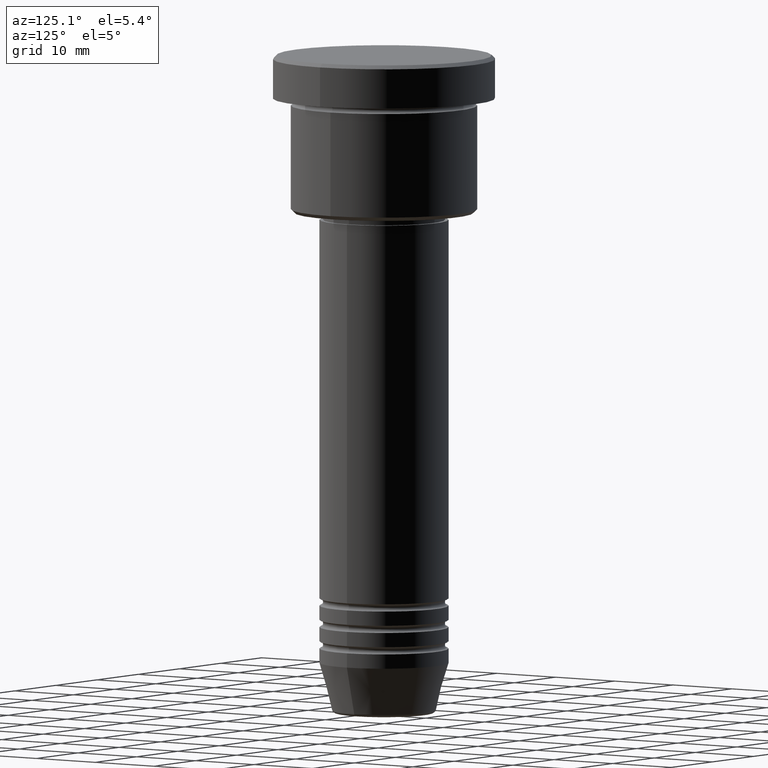
[diagram: clean part render]
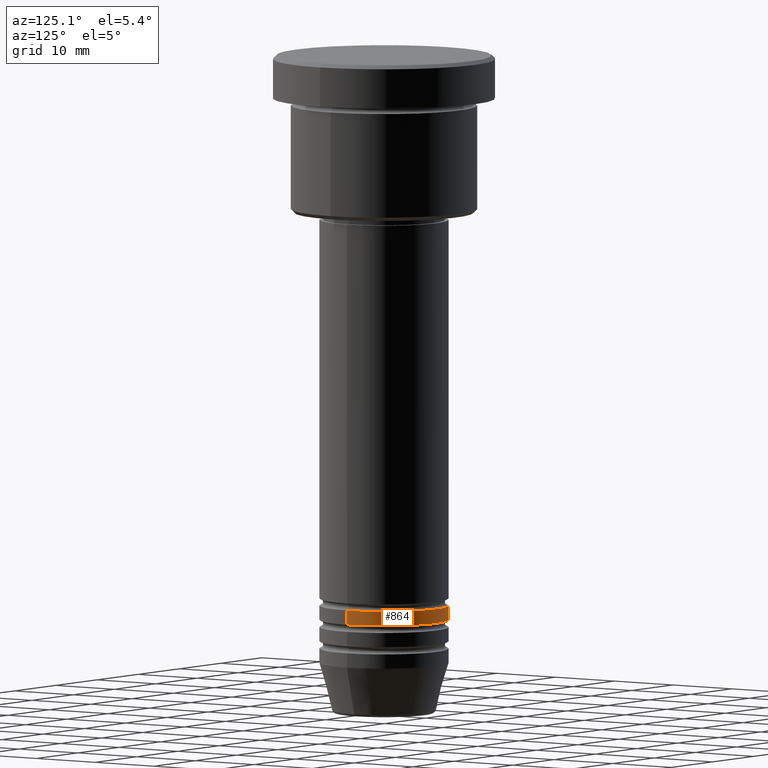
[diagram: same view with one face highlighted and labeled with its STEP entity id]
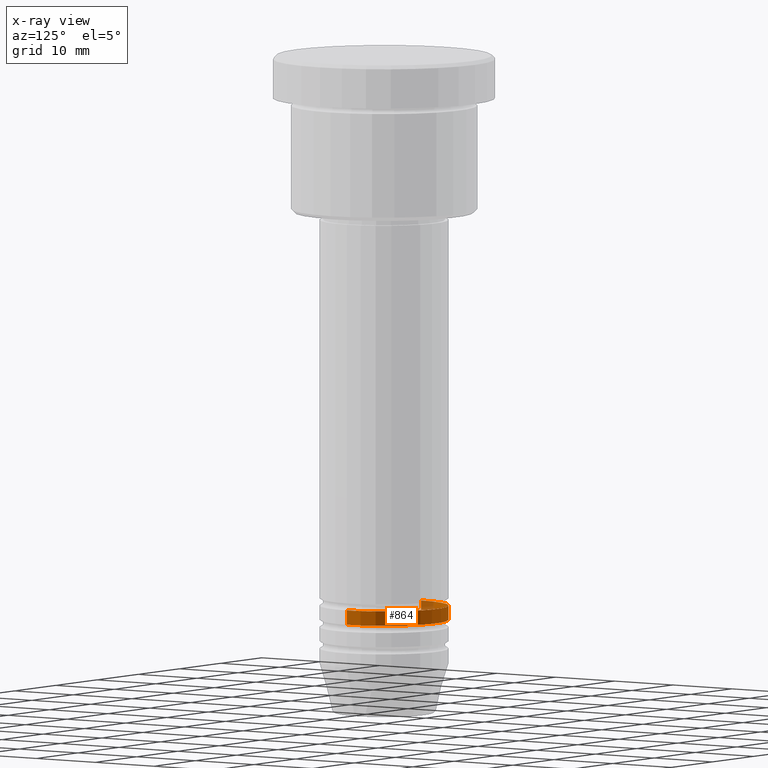
[diagram: x-ray of the same camera — body ghosted, the highlighted face saturated]
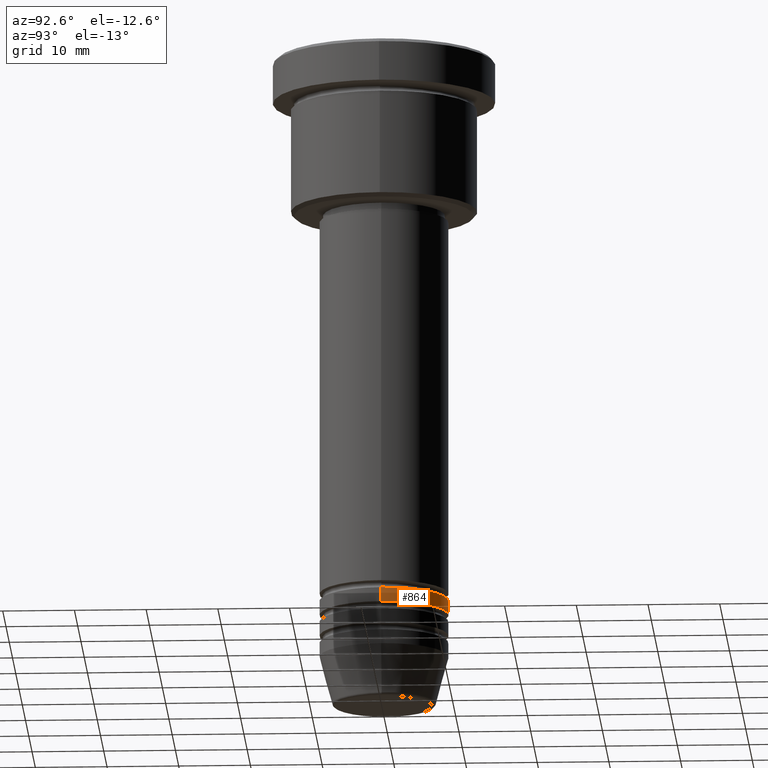
[diagram: same view with one face highlighted and labeled with its STEP entity id]
A machine part, auxiliary view. The second image highlights one B-rep face of the part: STEP entity #864.
The next image is the same camera in x-ray: the body ghosted, the highlighted face saturated — about 7% of this face is hidden behind the body in this view.
A second angle (auxiliary view) of the same face is appended — the face is thin or edge-on in the first view.
In plain terms, the highlighted cylindrical surface (partial cylindrical patch) has radius 9 mm, axis along (-0, -0, 1).
Its self-contained STEP definition (entity closure, byte-faithful):
#45 = CARTESIAN_POINT ( 'NONE',  ( 0.000000000000000000, 0.000000000000000000, 0.000000000000000000 ) ) ;
#103 = DIRECTION ( 'NONE',  ( 1.000000000000000000, 0.000000000000000000, 0.000000000000000000 ) ) ;
#191 = VECTOR ( 'NONE', #405, 1000.000000000000000 ) ;
#226 = FACE_OUTER_BOUND ( 'NONE', #450, .T. ) ;
#238 = ORIENTED_EDGE ( 'NONE', *, *, #460, .T. ) ;
#262 = DIRECTION ( 'NONE',  ( -0.000000000000000000, -0.000000000000000000, 1.000000000000000000 ) ) ;
#282 = CARTESIAN_POINT ( 'NONE',  ( -9.000000000000000000, 1.102182119232617714E-15, -78.99999999999997158 ) ) ;
#310 = CARTESIAN_POINT ( 'NONE',  ( 9.000000000000000000, 0.000000000000000000, 0.000000000000000000 ) ) ;
#316 = CIRCLE ( 'NONE', #679, 9.000000000000000000 ) ;
#325 = CARTESIAN_POINT ( 'NONE',  ( -9.000000000000000000, 1.102182119232617714E-15, 0.000000000000000000 ) ) ;
#330 = LINE ( 'NONE', #325, #191 ) ;
#336 = VERTEX_POINT ( 'NONE', #386 ) ;
#386 = CARTESIAN_POINT ( 'NONE',  ( 9.000000000000000000, 0.000000000000000000, -76.99999999999997158 ) ) ;
#405 = DIRECTION ( 'NONE',  ( -0.000000000000000000, -0.000000000000000000, 1.000000000000000000 ) ) ;
#450 = EDGE_LOOP ( 'NONE', ( #733, #238, #666, #806 ) ) ;
#460 = EDGE_CURVE ( 'NONE', #1116, #1049, #330, .T. ) ;
#501 = DIRECTION ( 'NONE',  ( 1.000000000000000000, 0.000000000000000000, 0.000000000000000000 ) ) ;
#523 = CIRCLE ( 'NONE', #675, 9.000000000000000000 ) ;
#546 = CARTESIAN_POINT ( 'NONE',  ( -9.000000000000000000, 1.102182119232617714E-15, -76.99999999999997158 ) ) ;
#556 = CARTESIAN_POINT ( 'NONE',  ( 0.000000000000000000, 0.000000000000000000, -76.99999999999997158 ) ) ;
#582 = VECTOR ( 'NONE', #672, 1000.000000000000000 ) ;
#590 = EDGE_CURVE ( 'NONE', #1035, #1116, #523, .T. ) ;
#621 = AXIS2_PLACEMENT_3D ( 'NONE', #45, #865, #501 ) ;
#666 = ORIENTED_EDGE ( 'NONE', *, *, #1145, .F. ) ;
#672 = DIRECTION ( 'NONE',  ( -0.000000000000000000, -0.000000000000000000, 1.000000000000000000 ) ) ;
#675 = AXIS2_PLACEMENT_3D ( 'NONE', #897, #262, #1089 ) ;
#679 = AXIS2_PLACEMENT_3D ( 'NONE', #556, #928, #103 ) ;
#733 = ORIENTED_EDGE ( 'NONE', *, *, #590, .T. ) ;
#737 = CARTESIAN_POINT ( 'NONE',  ( 9.000000000000000000, 0.000000000000000000, -78.99999999999997158 ) ) ;
#806 = ORIENTED_EDGE ( 'NONE', *, *, #840, .F. ) ;
#840 = EDGE_CURVE ( 'NONE', #1035, #336, #1050, .T. ) ;
#864 = ADVANCED_FACE ( 'NONE', ( #226 ), #961, .T. ) ;
#865 = DIRECTION ( 'NONE',  ( -0.000000000000000000, -0.000000000000000000, 1.000000000000000000 ) ) ;
#897 = CARTESIAN_POINT ( 'NONE',  ( 0.000000000000000000, 0.000000000000000000, -78.99999999999997158 ) ) ;
#928 = DIRECTION ( 'NONE',  ( -0.000000000000000000, -0.000000000000000000, 1.000000000000000000 ) ) ;
#961 = CYLINDRICAL_SURFACE ( 'NONE', #621, 9.000000000000000000 ) ;
#1035 = VERTEX_POINT ( 'NONE', #737 ) ;
#1049 = VERTEX_POINT ( 'NONE', #546 ) ;
#1050 = LINE ( 'NONE', #310, #582 ) ;
#1089 = DIRECTION ( 'NONE',  ( 1.000000000000000000, 0.000000000000000000, 0.000000000000000000 ) ) ;
#1116 = VERTEX_POINT ( 'NONE', #282 ) ;
#1145 = EDGE_CURVE ( 'NONE', #336, #1049, #316, .T. ) ;